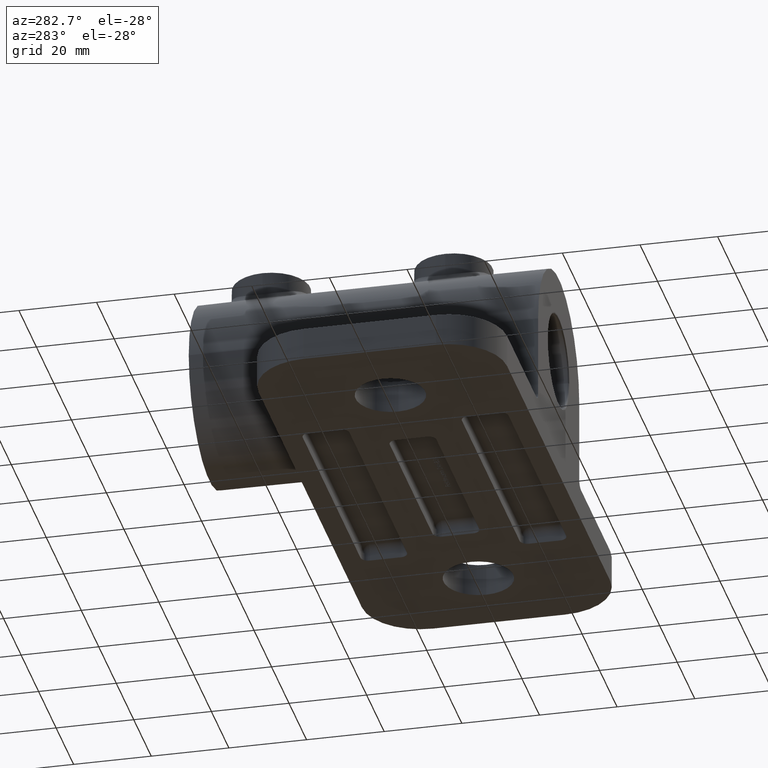
[diagram: clean part render]
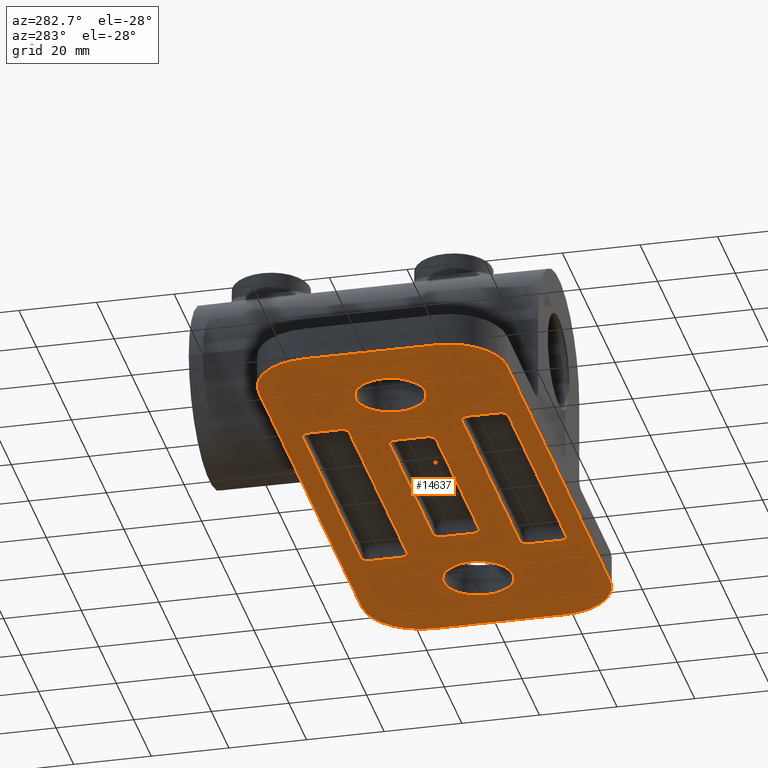
[diagram: same view with one face highlighted and labeled with its STEP entity id]
A machine part, auxiliary view. The second image highlights one B-rep face of the part: STEP entity #14637.
In plain terms, the highlighted planar face has unit normal (0, 0, 1).
Its self-contained STEP definition (entity closure, byte-faithful):
#24 = EDGE_CURVE ( 'NONE', #12736, #12712, #2774, .T. ) ;
#31 = FACE_BOUND ( 'NONE', #39, .T. ) ;
#39 = EDGE_LOOP ( 'NONE', ( #2910, #4706, #3463, #14124, #5667, #11427, #10890, #14689 ) ) ;
#190 = AXIS2_PLACEMENT_3D ( 'NONE', #11669, #13018, #8042 ) ;
#376 = EDGE_LOOP ( 'NONE', ( #2118, #10639 ) ) ;
#402 = CARTESIAN_POINT ( 'NONE',  ( 35.00000000000000700, -16.50000000000000000, 0.0000000000000000000 ) ) ;
#534 = CARTESIAN_POINT ( 'NONE',  ( -26.49999999999999300, 5.999999999999998200, 0.0000000000000000000 ) ) ;
#568 = DIRECTION ( 'NONE',  ( -0.0000000000000000000, -0.0000000000000000000, -1.000000000000000000 ) ) ;
#681 = CARTESIAN_POINT ( 'NONE',  ( -41.25000000000000700, 1.102182119232618300E-015, 0.0000000000000000000 ) ) ;
#721 = ORIENTED_EDGE ( 'NONE', *, *, #15872, .T. ) ;
#747 = DIRECTION ( 'NONE',  ( -5.782411586589356700E-016, -1.000000000000000000, -0.0000000000000000000 ) ) ;
#852 = CARTESIAN_POINT ( 'NONE',  ( -32.99999999999998600, 24.49999999999999300, 0.0000000000000000000 ) ) ;
#930 = EDGE_CURVE ( 'NONE', #12761, #2747, #11835, .T. ) ;
#1074 = CARTESIAN_POINT ( 'NONE',  ( -24.49999999999999300, -6.000000000000001800, 0.0000000000000000000 ) ) ;
#1088 = EDGE_CURVE ( 'NONE', #4200, #13580, #3756, .T. ) ;
#1132 = VERTEX_POINT ( 'NONE', #8295 ) ;
#1165 = CIRCLE ( 'NONE', #11807, 1.999999999999998200 ) ;
#1170 = CIRCLE ( 'NONE', #9720, 2.000000000000001800 ) ;
#1195 = LINE ( 'NONE', #4574, #12588 ) ;
#1228 = AXIS2_PLACEMENT_3D ( 'NONE', #15555, #8320, #4407 ) ;
#1285 = DIRECTION ( 'NONE',  ( 1.000000000000000000, 9.912705577010325500E-017, -0.0000000000000000000 ) ) ;
#1307 = CARTESIAN_POINT ( 'NONE',  ( -26.49999999999999300, 3.999999999999998200, 0.0000000000000000000 ) ) ;
#1326 = CARTESIAN_POINT ( 'NONE',  ( -32.99999999999999300, -24.49999999999999300, 0.0000000000000000000 ) ) ;
#1396 = VERTEX_POINT ( 'NONE', #5079 ) ;
#1409 = CARTESIAN_POINT ( 'NONE',  ( -34.99999999999999300, 16.50000000000000000, 0.0000000000000000000 ) ) ;
#1445 = ORIENTED_EDGE ( 'NONE', *, *, #6252, .F. ) ;
#1462 = DIRECTION ( 'NONE',  ( 0.0000000000000000000, 0.0000000000000000000, 1.000000000000000000 ) ) ;
#1505 = EDGE_CURVE ( 'NONE', #1132, #2139, #13388, .T. ) ;
#1530 = ORIENTED_EDGE ( 'NONE', *, *, #6024, .T. ) ;
#1636 = VERTEX_POINT ( 'NONE', #8412 ) ;
#1753 = EDGE_CURVE ( 'NONE', #6085, #13856, #4116, .T. ) ;
#1847 = CARTESIAN_POINT ( 'NONE',  ( 59.00000000000001400, 16.99999999999998600, 0.0000000000000000000 ) ) ;
#1908 = DIRECTION ( 'NONE',  ( 1.000000000000000000, -0.0000000000000000000, -0.0000000000000000000 ) ) ;
#2114 = VECTOR ( 'NONE', #13459, 1000.000000000000000 ) ;
#2118 = ORIENTED_EDGE ( 'NONE', *, *, #3668, .T. ) ;
#2139 = VERTEX_POINT ( 'NONE', #8196 ) ;
#2161 = CARTESIAN_POINT ( 'NONE',  ( -34.99999999999999300, 14.50000000000000200, 0.0000000000000000000 ) ) ;
#2169 = LINE ( 'NONE', #11329, #7991 ) ;
#2198 = CARTESIAN_POINT ( 'NONE',  ( 35.00000000000000700, 16.50000000000000000, 0.0000000000000000000 ) ) ;
#2340 = ORIENTED_EDGE ( 'NONE', *, *, #14916, .F. ) ;
#2360 = LINE ( 'NONE', #8283, #12966 ) ;
#2550 = CARTESIAN_POINT ( 'NONE',  ( -32.99999999999999300, 14.50000000000000200, 0.0000000000000000000 ) ) ;
#2561 = EDGE_LOOP ( 'NONE', ( #12664, #8765 ) ) ;
#2665 = CARTESIAN_POINT ( 'NONE',  ( 33.00000000000000700, 14.50000000000000200, 0.0000000000000000000 ) ) ;
#2670 = ORIENTED_EDGE ( 'NONE', *, *, #5905, .T. ) ;
#2710 = DIRECTION ( 'NONE',  ( 0.0000000000000000000, 0.0000000000000000000, 1.000000000000000000 ) ) ;
#2720 = CARTESIAN_POINT ( 'NONE',  ( 35.00000000000000700, -14.49999999999999800, -0.0000000000000000000 ) ) ;
#2742 = CARTESIAN_POINT ( 'NONE',  ( 26.50000000000000400, -6.000000000000001800, -0.0000000000000000000 ) ) ;
#2747 = VERTEX_POINT ( 'NONE', #1074 ) ;
#2764 = DIRECTION ( 'NONE',  ( -1.000000000000000000, -0.0000000000000000000, -0.0000000000000000000 ) ) ;
#2774 = CIRCLE ( 'NONE', #15959, 2.000000000000001800 ) ;
#2844 = AXIS2_PLACEMENT_3D ( 'NONE', #15044, #13870, #7806 ) ;
#2910 = ORIENTED_EDGE ( 'NONE', *, *, #3421, .F. ) ;
#2985 = DIRECTION ( 'NONE',  ( 1.000000000000000000, 0.0000000000000000000, 0.0000000000000000000 ) ) ;
#3024 = EDGE_CURVE ( 'NONE', #1132, #5634, #15459, .T. ) ;
#3057 = EDGE_CURVE ( 'NONE', #3617, #1636, #12578, .T. ) ;
#3128 = DIRECTION ( 'NONE',  ( 0.0000000000000000000, 0.0000000000000000000, 1.000000000000000000 ) ) ;
#3147 = AXIS2_PLACEMENT_3D ( 'NONE', #12734, #11702, #4331 ) ;
#3164 = CARTESIAN_POINT ( 'NONE',  ( 26.50000000000000400, -3.999999999999998200, 0.0000000000000000000 ) ) ;
#3220 = EDGE_CURVE ( 'NONE', #9483, #5088, #15262, .T. ) ;
#3236 = CARTESIAN_POINT ( 'NONE',  ( -50.25000000000000700, 0.0000000000000000000, 0.0000000000000000000 ) ) ;
#3336 = CARTESIAN_POINT ( 'NONE',  ( 59.00000000000001400, -32.00000000000001400, 0.0000000000000000000 ) ) ;
#3358 = EDGE_CURVE ( 'NONE', #10099, #11204, #9129, .T. ) ;
#3421 = EDGE_CURVE ( 'NONE', #4200, #4790, #9508, .T. ) ;
#3423 = CIRCLE ( 'NONE', #1228, 2.000000000000001800 ) ;
#3425 = DIRECTION ( 'NONE',  ( 0.0000000000000000000, 0.0000000000000000000, 1.000000000000000000 ) ) ;
#3463 = ORIENTED_EDGE ( 'NONE', *, *, #3790, .F. ) ;
#3617 = VERTEX_POINT ( 'NONE', #6890 ) ;
#3640 = CARTESIAN_POINT ( 'NONE',  ( -74.00000000000000000, 31.99999999999998600, 0.0000000000000000000 ) ) ;
#3644 = EDGE_CURVE ( 'NONE', #6263, #8488, #10451, .T. ) ;
#3668 = EDGE_CURVE ( 'NONE', #12901, #13178, #9701, .T. ) ;
#3756 = CIRCLE ( 'NONE', #13198, 1.999999999999998200 ) ;
#3790 = EDGE_CURVE ( 'NONE', #12761, #13580, #5832, .T. ) ;
#3885 = FACE_BOUND ( 'NONE', #5332, .T. ) ;
#3912 = AXIS2_PLACEMENT_3D ( 'NONE', #1847, #568, #12907 ) ;
#3963 = AXIS2_PLACEMENT_3D ( 'NONE', #14005, #5294, #11353 ) ;
#4069 = EDGE_CURVE ( 'NONE', #10405, #8488, #1170, .T. ) ;
#4116 = CIRCLE ( 'NONE', #2844, 15.00000000000000000 ) ;
#4118 = CARTESIAN_POINT ( 'NONE',  ( 50.24999999999999300, 1.255245907216817500E-014, 0.0000000000000000000 ) ) ;
#4124 = VECTOR ( 'NONE', #1285, 1000.000000000000000 ) ;
#4161 = CARTESIAN_POINT ( 'NONE',  ( -74.00000000000000000, 31.99999999999998600, 0.0000000000000000000 ) ) ;
#4196 = ORIENTED_EDGE ( 'NONE', *, *, #11934, .F. ) ;
#4200 = VERTEX_POINT ( 'NONE', #13584 ) ;
#4207 = CIRCLE ( 'NONE', #190, 2.000000000000001800 ) ;
#4210 = EDGE_CURVE ( 'NONE', #6263, #15242, #11577, .T. ) ;
#4312 = EDGE_LOOP ( 'NONE', ( #12884, #6809, #12222, #7770, #5284, #5544, #4196, #6145 ) ) ;
#4317 = DIRECTION ( 'NONE',  ( 0.0000000000000000000, 0.0000000000000000000, 1.000000000000000000 ) ) ;
#4331 = DIRECTION ( 'NONE',  ( 1.000000000000000000, 0.0000000000000000000, 0.0000000000000000000 ) ) ;
#4407 = DIRECTION ( 'NONE',  ( 1.000000000000000000, 0.0000000000000000000, 0.0000000000000000000 ) ) ;
#4431 = DIRECTION ( 'NONE',  ( 0.0000000000000000000, 1.000000000000000000, 0.0000000000000000000 ) ) ;
#4536 = CARTESIAN_POINT ( 'NONE',  ( -34.99999999999999300, -24.49999999999999300, 0.0000000000000000000 ) ) ;
#4574 = CARTESIAN_POINT ( 'NONE',  ( 35.00000000000000700, -14.49999999999999800, -0.0000000000000000000 ) ) ;
#4577 = VERTEX_POINT ( 'NONE', #7238 ) ;
#4593 = VECTOR ( 'NONE', #9916, 1000.000000000000000 ) ;
#4599 = VERTEX_POINT ( 'NONE', #14629 ) ;
#4682 = VECTOR ( 'NONE', #5252, 1000.000000000000000 ) ;
#4706 = ORIENTED_EDGE ( 'NONE', *, *, #1088, .T. ) ;
#4790 = VERTEX_POINT ( 'NONE', #7662 ) ;
#4866 = VECTOR ( 'NONE', #14953, 1000.000000000000000 ) ;
#4992 = CARTESIAN_POINT ( 'NONE',  ( 26.50000000000000700, 6.000000000000000000, 0.0000000000000000000 ) ) ;
#5079 = CARTESIAN_POINT ( 'NONE',  ( -32.99999999999999300, -14.49999999999999800, 0.0000000000000000000 ) ) ;
#5088 = VERTEX_POINT ( 'NONE', #6750 ) ;
#5112 = EDGE_CURVE ( 'NONE', #8510, #4790, #4207, .T. ) ;
#5158 = DIRECTION ( 'NONE',  ( 0.0000000000000000000, 0.0000000000000000000, 1.000000000000000000 ) ) ;
#5252 = DIRECTION ( 'NONE',  ( -1.000000000000000000, 0.0000000000000000000, 0.0000000000000000000 ) ) ;
#5284 = ORIENTED_EDGE ( 'NONE', *, *, #8833, .F. ) ;
#5294 = DIRECTION ( 'NONE',  ( 0.0000000000000000000, 0.0000000000000000000, 1.000000000000000000 ) ) ;
#5332 = EDGE_LOOP ( 'NONE', ( #10175, #13114, #10648, #721, #12524, #2670, #6403, #12543 ) ) ;
#5374 = LINE ( 'NONE', #14798, #4593 ) ;
#5520 = CARTESIAN_POINT ( 'NONE',  ( 35.00000000000001400, -26.49999999999999600, -0.0000000000000000000 ) ) ;
#5544 = ORIENTED_EDGE ( 'NONE', *, *, #3057, .T. ) ;
#5618 = DIRECTION ( 'NONE',  ( 0.0000000000000000000, 0.0000000000000000000, 1.000000000000000000 ) ) ;
#5634 = VERTEX_POINT ( 'NONE', #3336 ) ;
#5667 = ORIENTED_EDGE ( 'NONE', *, *, #13058, .F. ) ;
#5703 = EDGE_CURVE ( 'NONE', #9840, #5634, #14037, .T. ) ;
#5832 = LINE ( 'NONE', #534, #14093 ) ;
#5850 = VECTOR ( 'NONE', #4431, 1000.000000000000000 ) ;
#5905 = EDGE_CURVE ( 'NONE', #13741, #14381, #9427, .T. ) ;
#5951 = CARTESIAN_POINT ( 'NONE',  ( 59.25000000000000000, 1.365464119140079200E-014, 0.0000000000000000000 ) ) ;
#6024 = EDGE_CURVE ( 'NONE', #1396, #15174, #3423, .T. ) ;
#6085 = VERTEX_POINT ( 'NONE', #14278 ) ;
#6145 = ORIENTED_EDGE ( 'NONE', *, *, #5703, .T. ) ;
#6252 = EDGE_CURVE ( 'NONE', #10405, #15174, #14643, .T. ) ;
#6263 = VERTEX_POINT ( 'NONE', #9770 ) ;
#6265 = AXIS2_PLACEMENT_3D ( 'NONE', #3236, #3128, #6907 ) ;
#6296 = CIRCLE ( 'NONE', #14728, 2.000000000000001800 ) ;
#6403 = ORIENTED_EDGE ( 'NONE', *, *, #12774, .F. ) ;
#6433 = CARTESIAN_POINT ( 'NONE',  ( -26.49999999999999300, -4.000000000000001800, 0.0000000000000000000 ) ) ;
#6590 = DIRECTION ( 'NONE',  ( 1.000000000000000000, 0.0000000000000000000, 0.0000000000000000000 ) ) ;
#6750 = CARTESIAN_POINT ( 'NONE',  ( 41.24999999999999300, 1.255245907216817500E-014, 0.0000000000000000000 ) ) ;
#6809 = ORIENTED_EDGE ( 'NONE', *, *, #1505, .T. ) ;
#6824 = CIRCLE ( 'NONE', #6265, 9.000000000000001800 ) ;
#6890 = CARTESIAN_POINT ( 'NONE',  ( 59.00000000000001400, 31.99999999999998600, 0.0000000000000000000 ) ) ;
#6907 = DIRECTION ( 'NONE',  ( 1.000000000000000000, 0.0000000000000000000, 0.0000000000000000000 ) ) ;
#6924 = CARTESIAN_POINT ( 'NONE',  ( 0.0000000000000000000, 0.0000000000000000000, 0.0000000000000000000 ) ) ;
#7195 = LINE ( 'NONE', #3640, #2114 ) ;
#7210 = EDGE_CURVE ( 'NONE', #13741, #13265, #5374, .T. ) ;
#7220 = VECTOR ( 'NONE', #9296, 1000.000000000000000 ) ;
#7228 = VECTOR ( 'NONE', #11250, 1000.000000000000000 ) ;
#7238 = CARTESIAN_POINT ( 'NONE',  ( 33.00000000000001400, 26.50000000000000400, 0.0000000000000000000 ) ) ;
#7268 = AXIS2_PLACEMENT_3D ( 'NONE', #7712, #1462, #9047 ) ;
#7273 = DIRECTION ( 'NONE',  ( 1.000000000000000000, 0.0000000000000000000, 0.0000000000000000000 ) ) ;
#7503 = EDGE_LOOP ( 'NONE', ( #10821, #1530, #1445, #14227, #11302, #11436, #2340, #15216 ) ) ;
#7566 = VERTEX_POINT ( 'NONE', #3164 ) ;
#7591 = LINE ( 'NONE', #2720, #15646 ) ;
#7662 = CARTESIAN_POINT ( 'NONE',  ( 24.50000000000000700, 6.000000000000000000, 0.0000000000000000000 ) ) ;
#7712 = CARTESIAN_POINT ( 'NONE',  ( 33.00000000000001400, -24.49999999999999300, 0.0000000000000000000 ) ) ;
#7770 = ORIENTED_EDGE ( 'NONE', *, *, #1753, .T. ) ;
#7806 = DIRECTION ( 'NONE',  ( 1.000000000000000000, 0.0000000000000000000, 0.0000000000000000000 ) ) ;
#7840 = CARTESIAN_POINT ( 'NONE',  ( -24.49999999999999600, 3.999999999999998200, 0.0000000000000000000 ) ) ;
#7880 = EDGE_CURVE ( 'NONE', #5088, #9483, #11710, .T. ) ;
#7905 = DIRECTION ( 'NONE',  ( 1.000000000000000000, 0.0000000000000000000, 0.0000000000000000000 ) ) ;
#7991 = VECTOR ( 'NONE', #14959, 1000.000000000000000 ) ;
#8042 = DIRECTION ( 'NONE',  ( 1.000000000000000000, 0.0000000000000000000, 0.0000000000000000000 ) ) ;
#8092 = VERTEX_POINT ( 'NONE', #8854 ) ;
#8196 = CARTESIAN_POINT ( 'NONE',  ( -74.00000000000000000, -17.00000000000000700, 0.0000000000000000000 ) ) ;
#8283 = CARTESIAN_POINT ( 'NONE',  ( 35.00000000000000700, 14.50000000000000200, 0.0000000000000000000 ) ) ;
#8294 = CARTESIAN_POINT ( 'NONE',  ( 35.00000000000001400, -24.49999999999999300, 0.0000000000000000000 ) ) ;
#8295 = CARTESIAN_POINT ( 'NONE',  ( -59.00000000000000000, -32.00000000000000700, 0.0000000000000000000 ) ) ;
#8320 = DIRECTION ( 'NONE',  ( 0.0000000000000000000, 0.0000000000000000000, 1.000000000000000000 ) ) ;
#8386 = DIRECTION ( 'NONE',  ( -0.0000000000000000000, 1.000000000000000000, -0.0000000000000000000 ) ) ;
#8412 = CARTESIAN_POINT ( 'NONE',  ( 74.00000000000000000, 16.99999999999998600, 0.0000000000000000000 ) ) ;
#8478 = CARTESIAN_POINT ( 'NONE',  ( 33.00000000000000700, -16.50000000000000000, 0.0000000000000000000 ) ) ;
#8488 = VERTEX_POINT ( 'NONE', #10765 ) ;
#8504 = DIRECTION ( 'NONE',  ( 1.000000000000000000, 0.0000000000000000000, 0.0000000000000000000 ) ) ;
#8510 = VERTEX_POINT ( 'NONE', #11948 ) ;
#8557 = CARTESIAN_POINT ( 'NONE',  ( 35.00000000000001400, 26.50000000000000400, 0.0000000000000000000 ) ) ;
#8712 = LINE ( 'NONE', #4161, #11567 ) ;
#8738 = CARTESIAN_POINT ( 'NONE',  ( 26.50000000000000700, 6.000000000000000000, 0.0000000000000000000 ) ) ;
#8765 = ORIENTED_EDGE ( 'NONE', *, *, #3220, .T. ) ;
#8807 = CARTESIAN_POINT ( 'NONE',  ( -24.49999999999999300, -4.000000000000001800, 0.0000000000000000000 ) ) ;
#8833 = EDGE_CURVE ( 'NONE', #3617, #13856, #8712, .T. ) ;
#8854 = CARTESIAN_POINT ( 'NONE',  ( -32.99999999999998600, 26.49999999999999600, 0.0000000000000000000 ) ) ;
#8863 = AXIS2_PLACEMENT_3D ( 'NONE', #8807, #15994, #12547 ) ;
#9047 = DIRECTION ( 'NONE',  ( 1.000000000000000000, 0.0000000000000000000, 0.0000000000000000000 ) ) ;
#9103 = CARTESIAN_POINT ( 'NONE',  ( -59.00000000000000000, 31.99999999999998600, 0.0000000000000000000 ) ) ;
#9129 = LINE ( 'NONE', #2161, #5850 ) ;
#9188 = CARTESIAN_POINT ( 'NONE',  ( 33.00000000000000700, 16.50000000000000000, 0.0000000000000000000 ) ) ;
#9273 = DIRECTION ( 'NONE',  ( 1.000000000000000000, -4.688441826964343700E-017, 0.0000000000000000000 ) ) ;
#9296 = DIRECTION ( 'NONE',  ( -1.000000000000000000, 0.0000000000000000000, 0.0000000000000000000 ) ) ;
#9312 = LINE ( 'NONE', #2742, #4682 ) ;
#9427 = CIRCLE ( 'NONE', #10541, 2.000000000000001800 ) ;
#9445 = CARTESIAN_POINT ( 'NONE',  ( 50.24999999999999300, 1.255245907216817500E-014, 0.0000000000000000000 ) ) ;
#9483 = VERTEX_POINT ( 'NONE', #5951 ) ;
#9508 = LINE ( 'NONE', #4992, #4866 ) ;
#9701 = CIRCLE ( 'NONE', #15464, 9.000000000000001800 ) ;
#9720 = AXIS2_PLACEMENT_3D ( 'NONE', #1326, #3425, #13307 ) ;
#9770 = CARTESIAN_POINT ( 'NONE',  ( 33.00000000000001400, -26.49999999999999600, 0.0000000000000000000 ) ) ;
#9840 = VERTEX_POINT ( 'NONE', #15715 ) ;
#9895 = CIRCLE ( 'NONE', #3963, 2.000000000000001800 ) ;
#9914 = CARTESIAN_POINT ( 'NONE',  ( 24.50000000000000400, -4.000000000000001800, 0.0000000000000000000 ) ) ;
#9916 = DIRECTION ( 'NONE',  ( -1.000000000000000000, 0.0000000000000000000, 0.0000000000000000000 ) ) ;
#9936 = LINE ( 'NONE', #8557, #4124 ) ;
#9990 = EDGE_CURVE ( 'NONE', #6085, #2139, #7195, .T. ) ;
#10068 = DIRECTION ( 'NONE',  ( 1.000000000000000000, 0.0000000000000000000, 0.0000000000000000000 ) ) ;
#10070 = FACE_OUTER_BOUND ( 'NONE', #4312, .T. ) ;
#10086 = EDGE_CURVE ( 'NONE', #4599, #7566, #1165, .T. ) ;
#10099 = VERTEX_POINT ( 'NONE', #1409 ) ;
#10175 = ORIENTED_EDGE ( 'NONE', *, *, #11161, .F. ) ;
#10356 = VERTEX_POINT ( 'NONE', #10908 ) ;
#10405 = VERTEX_POINT ( 'NONE', #4536 ) ;
#10409 = DIRECTION ( 'NONE',  ( -0.0000000000000000000, 1.000000000000000000, -0.0000000000000000000 ) ) ;
#10444 = FACE_BOUND ( 'NONE', #376, .T. ) ;
#10451 = LINE ( 'NONE', #5520, #7220 ) ;
#10541 = AXIS2_PLACEMENT_3D ( 'NONE', #9188, #11679, #2985 ) ;
#10639 = ORIENTED_EDGE ( 'NONE', *, *, #15221, .T. ) ;
#10648 = ORIENTED_EDGE ( 'NONE', *, *, #3358, .F. ) ;
#10685 = DIRECTION ( 'NONE',  ( 1.000000000000000000, 0.0000000000000000000, 0.0000000000000000000 ) ) ;
#10736 = AXIS2_PLACEMENT_3D ( 'NONE', #10993, #13386, #10901 ) ;
#10765 = CARTESIAN_POINT ( 'NONE',  ( -32.99999999999998600, -26.49999999999999600, 0.0000000000000000000 ) ) ;
#10821 = ORIENTED_EDGE ( 'NONE', *, *, #12461, .F. ) ;
#10890 = ORIENTED_EDGE ( 'NONE', *, *, #13540, .F. ) ;
#10901 = DIRECTION ( 'NONE',  ( 1.000000000000000000, 0.0000000000000000000, 0.0000000000000000000 ) ) ;
#10908 = CARTESIAN_POINT ( 'NONE',  ( 35.00000000000001400, 24.50000000000000000, 0.0000000000000000000 ) ) ;
#10909 = EDGE_CURVE ( 'NONE', #10356, #4577, #6296, .T. ) ;
#10993 = CARTESIAN_POINT ( 'NONE',  ( 59.00000000000000000, -17.00000000000001400, 0.0000000000000000000 ) ) ;
#11161 = EDGE_CURVE ( 'NONE', #8092, #4577, #9936, .T. ) ;
#11204 = VERTEX_POINT ( 'NONE', #11226 ) ;
#11226 = CARTESIAN_POINT ( 'NONE',  ( -34.99999999999999300, 24.49999999999999300, 0.0000000000000000000 ) ) ;
#11234 = LINE ( 'NONE', #8738, #7228 ) ;
#11250 = DIRECTION ( 'NONE',  ( -2.891205793294678300E-016, -1.000000000000000000, -0.0000000000000000000 ) ) ;
#11302 = ORIENTED_EDGE ( 'NONE', *, *, #3644, .F. ) ;
#11329 = CARTESIAN_POINT ( 'NONE',  ( 74.00000000000000000, 31.99999999999998600, 0.0000000000000000000 ) ) ;
#11350 = CARTESIAN_POINT ( 'NONE',  ( 33.00000000000000700, -14.49999999999999800, 0.0000000000000000000 ) ) ;
#11353 = DIRECTION ( 'NONE',  ( 1.000000000000000000, 0.0000000000000000000, 0.0000000000000000000 ) ) ;
#11427 = ORIENTED_EDGE ( 'NONE', *, *, #10086, .T. ) ;
#11436 = ORIENTED_EDGE ( 'NONE', *, *, #4210, .T. ) ;
#11567 = VECTOR ( 'NONE', #2764, 1000.000000000000000 ) ;
#11577 = CIRCLE ( 'NONE', #7268, 2.000000000000001800 ) ;
#11669 = CARTESIAN_POINT ( 'NONE',  ( 24.50000000000000700, 4.000000000000000000, 0.0000000000000000000 ) ) ;
#11679 = DIRECTION ( 'NONE',  ( 0.0000000000000000000, 0.0000000000000000000, 1.000000000000000000 ) ) ;
#11702 = DIRECTION ( 'NONE',  ( -0.0000000000000000000, -0.0000000000000000000, -1.000000000000000000 ) ) ;
#11710 = CIRCLE ( 'NONE', #12103, 9.000000000000001800 ) ;
#11722 = CARTESIAN_POINT ( 'NONE',  ( -74.00000000000000000, -32.00000000000000700, 0.0000000000000000000 ) ) ;
#11807 = AXIS2_PLACEMENT_3D ( 'NONE', #9914, #5158, #14960 ) ;
#11835 = CIRCLE ( 'NONE', #8863, 2.000000000000001800 ) ;
#11934 = EDGE_CURVE ( 'NONE', #9840, #1636, #2169, .T. ) ;
#11948 = CARTESIAN_POINT ( 'NONE',  ( 26.50000000000000700, 4.000000000000000000, 0.0000000000000000000 ) ) ;
#12027 = AXIS2_PLACEMENT_3D ( 'NONE', #852, #14612, #7273 ) ;
#12103 = AXIS2_PLACEMENT_3D ( 'NONE', #9445, #5618, #10685 ) ;
#12123 = CARTESIAN_POINT ( 'NONE',  ( -34.99999999999999300, -14.49999999999999800, 0.0000000000000000000 ) ) ;
#12143 = DIRECTION ( 'NONE',  ( 0.0000000000000000000, 0.0000000000000000000, 1.000000000000000000 ) ) ;
#12179 = FACE_BOUND ( 'NONE', #2561, .T. ) ;
#12202 = VECTOR ( 'NONE', #9273, 1000.000000000000000 ) ;
#12222 = ORIENTED_EDGE ( 'NONE', *, *, #9990, .F. ) ;
#12461 = EDGE_CURVE ( 'NONE', #1396, #12712, #1195, .T. ) ;
#12503 = CARTESIAN_POINT ( 'NONE',  ( -59.25000000000001400, 0.0000000000000000000, 0.0000000000000000000 ) ) ;
#12524 = ORIENTED_EDGE ( 'NONE', *, *, #7210, .F. ) ;
#12543 = ORIENTED_EDGE ( 'NONE', *, *, #10909, .T. ) ;
#12547 = DIRECTION ( 'NONE',  ( 1.000000000000000000, 0.0000000000000000000, 0.0000000000000000000 ) ) ;
#12578 = CIRCLE ( 'NONE', #3912, 15.00000000000000000 ) ;
#12588 = VECTOR ( 'NONE', #1908, 1000.000000000000000 ) ;
#12664 = ORIENTED_EDGE ( 'NONE', *, *, #7880, .T. ) ;
#12712 = VERTEX_POINT ( 'NONE', #11350 ) ;
#12734 = CARTESIAN_POINT ( 'NONE',  ( -59.00000000000000000, -17.00000000000000700, 0.0000000000000000000 ) ) ;
#12736 = VERTEX_POINT ( 'NONE', #402 ) ;
#12761 = VERTEX_POINT ( 'NONE', #6433 ) ;
#12774 = EDGE_CURVE ( 'NONE', #10356, #14381, #2360, .T. ) ;
#12884 = ORIENTED_EDGE ( 'NONE', *, *, #3024, .F. ) ;
#12901 = VERTEX_POINT ( 'NONE', #12503 ) ;
#12907 = DIRECTION ( 'NONE',  ( 1.000000000000000000, 0.0000000000000000000, 0.0000000000000000000 ) ) ;
#12966 = VECTOR ( 'NONE', #747, 1000.000000000000000 ) ;
#13018 = DIRECTION ( 'NONE',  ( 0.0000000000000000000, 0.0000000000000000000, 1.000000000000000000 ) ) ;
#13023 = DIRECTION ( 'NONE',  ( 0.0000000000000000000, 0.0000000000000000000, 1.000000000000000000 ) ) ;
#13058 = EDGE_CURVE ( 'NONE', #4599, #2747, #9312, .T. ) ;
#13079 = DIRECTION ( 'NONE',  ( 1.000000000000000000, 0.0000000000000000000, -0.0000000000000000000 ) ) ;
#13114 = ORIENTED_EDGE ( 'NONE', *, *, #14360, .T. ) ;
#13126 = CIRCLE ( 'NONE', #12027, 2.000000000000001800 ) ;
#13178 = VERTEX_POINT ( 'NONE', #681 ) ;
#13198 = AXIS2_PLACEMENT_3D ( 'NONE', #7840, #13961, #6590 ) ;
#13265 = VERTEX_POINT ( 'NONE', #2550 ) ;
#13299 = VECTOR ( 'NONE', #8386, 1000.000000000000000 ) ;
#13307 = DIRECTION ( 'NONE',  ( 1.000000000000000000, 0.0000000000000000000, 0.0000000000000000000 ) ) ;
#13386 = DIRECTION ( 'NONE',  ( -0.0000000000000000000, -0.0000000000000000000, -1.000000000000000000 ) ) ;
#13388 = CIRCLE ( 'NONE', #3147, 15.00000000000000000 ) ;
#13459 = DIRECTION ( 'NONE',  ( 0.0000000000000000000, -1.000000000000000000, 0.0000000000000000000 ) ) ;
#13464 = AXIS2_PLACEMENT_3D ( 'NONE', #6924, #13023, #13079 ) ;
#13540 = EDGE_CURVE ( 'NONE', #8510, #7566, #11234, .T. ) ;
#13580 = VERTEX_POINT ( 'NONE', #1307 ) ;
#13584 = CARTESIAN_POINT ( 'NONE',  ( -24.49999999999999600, 5.999999999999998200, 0.0000000000000000000 ) ) ;
#13682 = DIRECTION ( 'NONE',  ( 1.000000000000000000, 0.0000000000000000000, 0.0000000000000000000 ) ) ;
#13741 = VERTEX_POINT ( 'NONE', #2665 ) ;
#13856 = VERTEX_POINT ( 'NONE', #9103 ) ;
#13870 = DIRECTION ( 'NONE',  ( -0.0000000000000000000, -0.0000000000000000000, -1.000000000000000000 ) ) ;
#13961 = DIRECTION ( 'NONE',  ( 0.0000000000000000000, 0.0000000000000000000, 1.000000000000000000 ) ) ;
#14005 = CARTESIAN_POINT ( 'NONE',  ( -32.99999999999999300, 16.50000000000000000, 0.0000000000000000000 ) ) ;
#14037 = CIRCLE ( 'NONE', #10736, 15.00000000000000000 ) ;
#14093 = VECTOR ( 'NONE', #10409, 1000.000000000000000 ) ;
#14124 = ORIENTED_EDGE ( 'NONE', *, *, #930, .T. ) ;
#14131 = AXIS2_PLACEMENT_3D ( 'NONE', #4118, #2710, #10068 ) ;
#14227 = ORIENTED_EDGE ( 'NONE', *, *, #4069, .T. ) ;
#14278 = CARTESIAN_POINT ( 'NONE',  ( -74.00000000000000000, 16.99999999999998600, 0.0000000000000000000 ) ) ;
#14360 = EDGE_CURVE ( 'NONE', #8092, #11204, #13126, .T. ) ;
#14381 = VERTEX_POINT ( 'NONE', #2198 ) ;
#14387 = PLANE ( 'NONE',  #13464 ) ;
#14414 = CARTESIAN_POINT ( 'NONE',  ( -34.99999999999999300, -16.50000000000000000, 0.0000000000000000000 ) ) ;
#14460 = CARTESIAN_POINT ( 'NONE',  ( 33.00000000000001400, 24.50000000000000000, 0.0000000000000000000 ) ) ;
#14612 = DIRECTION ( 'NONE',  ( 0.0000000000000000000, 0.0000000000000000000, 1.000000000000000000 ) ) ;
#14629 = CARTESIAN_POINT ( 'NONE',  ( 24.50000000000000400, -6.000000000000001800, 0.0000000000000000000 ) ) ;
#14637 = ADVANCED_FACE ( 'NONE', ( #14887, #3885, #31, #10070, #10444, #12179 ), #14387, .F. ) ;
#14643 = LINE ( 'NONE', #12123, #13299 ) ;
#14689 = ORIENTED_EDGE ( 'NONE', *, *, #5112, .T. ) ;
#14728 = AXIS2_PLACEMENT_3D ( 'NONE', #14460, #12143, #8504 ) ;
#14798 = CARTESIAN_POINT ( 'NONE',  ( 35.00000000000000700, 14.50000000000000200, 0.0000000000000000000 ) ) ;
#14887 = FACE_BOUND ( 'NONE', #7503, .T. ) ;
#14916 = EDGE_CURVE ( 'NONE', #12736, #15242, #7591, .T. ) ;
#14953 = DIRECTION ( 'NONE',  ( 1.000000000000000000, 3.273063162220390900E-017, -0.0000000000000000000 ) ) ;
#14959 = DIRECTION ( 'NONE',  ( -0.0000000000000000000, 1.000000000000000000, -0.0000000000000000000 ) ) ;
#14960 = DIRECTION ( 'NONE',  ( 1.000000000000000000, 0.0000000000000000000, 0.0000000000000000000 ) ) ;
#15044 = CARTESIAN_POINT ( 'NONE',  ( -59.00000000000000000, 16.99999999999998600, 0.0000000000000000000 ) ) ;
#15125 = DIRECTION ( 'NONE',  ( 5.782411586589358600E-016, -1.000000000000000000, 0.0000000000000000000 ) ) ;
#15174 = VERTEX_POINT ( 'NONE', #14414 ) ;
#15216 = ORIENTED_EDGE ( 'NONE', *, *, #24, .T. ) ;
#15221 = EDGE_CURVE ( 'NONE', #13178, #12901, #6824, .T. ) ;
#15242 = VERTEX_POINT ( 'NONE', #8294 ) ;
#15262 = CIRCLE ( 'NONE', #14131, 9.000000000000001800 ) ;
#15355 = CARTESIAN_POINT ( 'NONE',  ( -50.25000000000000700, 0.0000000000000000000, 0.0000000000000000000 ) ) ;
#15459 = LINE ( 'NONE', #11722, #12202 ) ;
#15464 = AXIS2_PLACEMENT_3D ( 'NONE', #15355, #4317, #7905 ) ;
#15555 = CARTESIAN_POINT ( 'NONE',  ( -32.99999999999999300, -16.50000000000000000, 0.0000000000000000000 ) ) ;
#15646 = VECTOR ( 'NONE', #15125, 1000.000000000000000 ) ;
#15715 = CARTESIAN_POINT ( 'NONE',  ( 74.00000000000000000, -17.00000000000001400, 0.0000000000000000000 ) ) ;
#15775 = DIRECTION ( 'NONE',  ( 0.0000000000000000000, 0.0000000000000000000, 1.000000000000000000 ) ) ;
#15872 = EDGE_CURVE ( 'NONE', #10099, #13265, #9895, .T. ) ;
#15959 = AXIS2_PLACEMENT_3D ( 'NONE', #8478, #15775, #13682 ) ;
#15994 = DIRECTION ( 'NONE',  ( 0.0000000000000000000, 0.0000000000000000000, 1.000000000000000000 ) ) ;